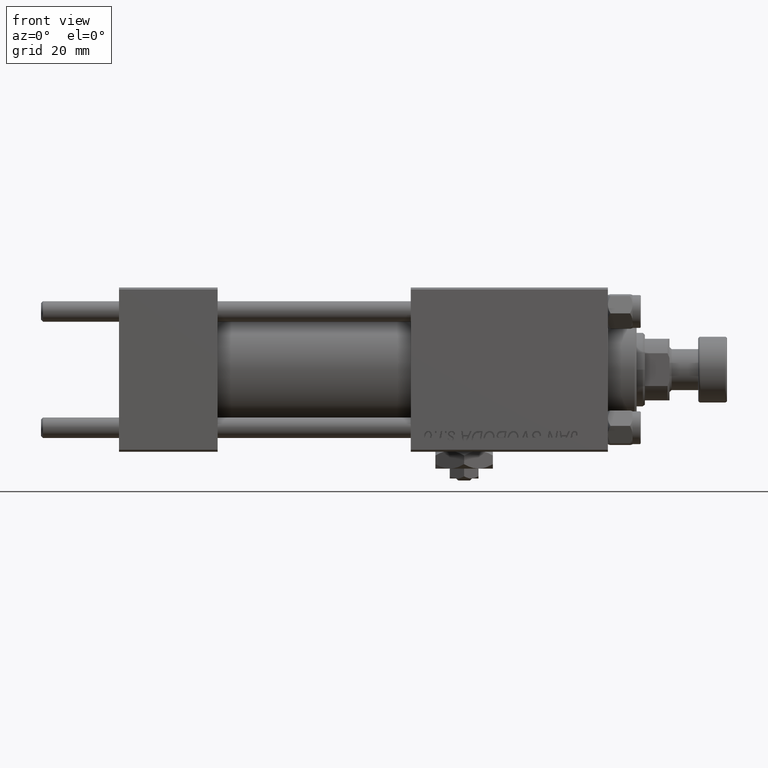
[diagram: clean part render]
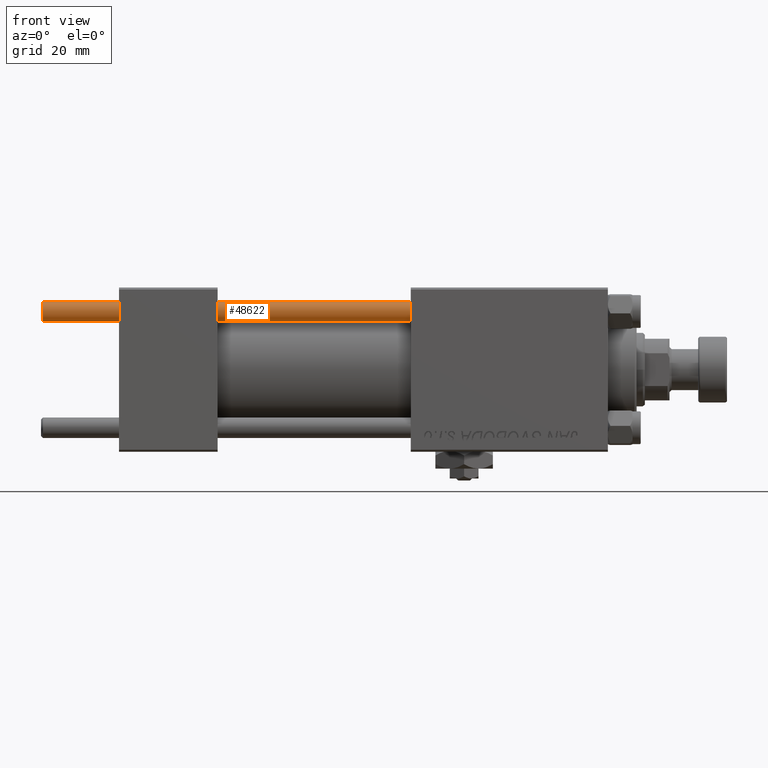
[diagram: same view with one face highlighted and labeled with its STEP entity id]
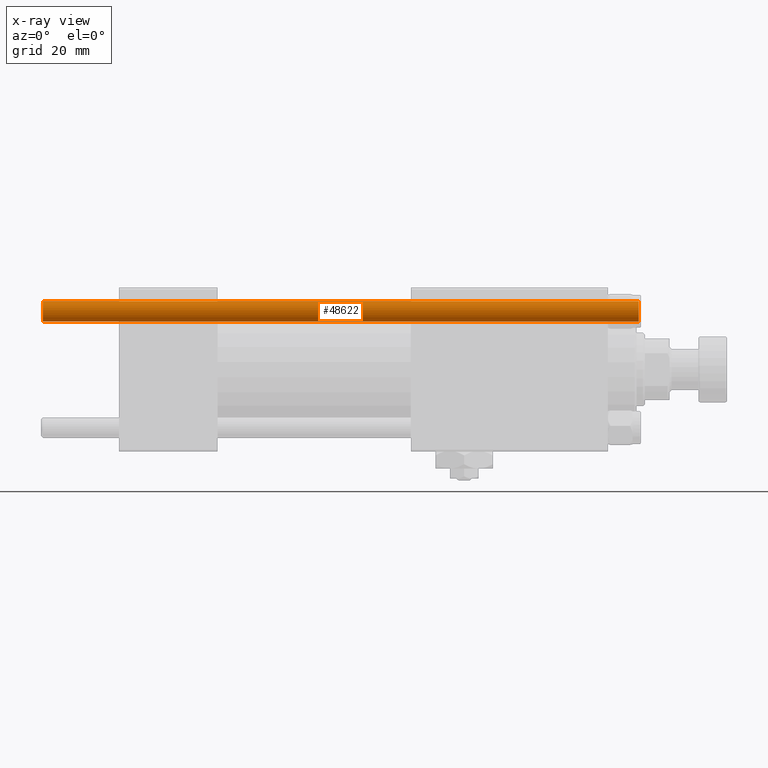
[diagram: x-ray of the same camera — body ghosted, the highlighted face saturated]
A machine part, front view. The second image highlights one B-rep face of the part: STEP entity #48622.
The next image is the same camera in x-ray: the body ghosted, the highlighted face saturated — about 0% of this face is hidden behind the body in this view.
In plain terms, the highlighted cylindrical surface (edge-blend (fillet) strip) has radius 2.5 mm, axis along (1, -0, 0).
Its self-contained STEP definition (entity closure, byte-faithful):
#196 = VECTOR ( 'NONE', #8652, 1000.000000000000000 ) ;
#265 = CYLINDRICAL_SURFACE ( 'NONE', #5485, 2.500000000000000000 ) ;
#375 = AXIS2_PLACEMENT_3D ( 'NONE', #30600, #2238, #50365 ) ;
#2238 = DIRECTION ( 'NONE',  ( 0.000000000000000000, 0.000000000000000000, -1.000000000000000000 ) ) ;
#2258 = VERTEX_POINT ( 'NONE', #36150 ) ;
#2588 = CARTESIAN_POINT ( 'NONE',  ( -2.500000000000000000, 0.000000000000000000, 145.5000000000000284 ) ) ;
#5485 = AXIS2_PLACEMENT_3D ( 'NONE', #8409, #36272, #47881 ) ;
#8371 = EDGE_CURVE ( 'NONE', #16095, #2258, #51496, .T. ) ;
#8409 = CARTESIAN_POINT ( 'NONE',  ( 0.000000000000000000, 0.000000000000000000, 146.0000000000000000 ) ) ;
#8652 = DIRECTION ( 'NONE',  ( -0.000000000000000000, -0.000000000000000000, -1.000000000000000000 ) ) ;
#8777 = ORIENTED_EDGE ( 'NONE', *, *, #16245, .T. ) ;
#10783 = ORIENTED_EDGE ( 'NONE', *, *, #19856, .T. ) ;
#14664 = DIRECTION ( 'NONE',  ( -0.000000000000000000, -0.000000000000000000, -1.000000000000000000 ) ) ;
#16095 = VERTEX_POINT ( 'NONE', #2588 ) ;
#16245 = EDGE_CURVE ( 'NONE', #17563, #2258, #46915, .T. ) ;
#17563 = VERTEX_POINT ( 'NONE', #35055 ) ;
#19135 = CARTESIAN_POINT ( 'NONE',  ( 0.000000000000000000, 0.000000000000000000, 0.5000000000000559552 ) ) ;
#19161 = AXIS2_PLACEMENT_3D ( 'NONE', #19135, #34910, #27797 ) ;
#19856 = EDGE_CURVE ( 'NONE', #51101, #17563, #44164, .T. ) ;
#22195 = CIRCLE ( 'NONE', #375, 2.500000000000000000 ) ;
#24376 = EDGE_CURVE ( 'NONE', #16095, #51101, #22195, .T. ) ;
#25788 = CARTESIAN_POINT ( 'NONE',  ( 2.500000000000000000, 3.061616997868383141E-16, 145.5000000000000284 ) ) ;
#27797 = DIRECTION ( 'NONE',  ( 1.000000000000000000, 0.000000000000000000, 0.000000000000000000 ) ) ;
#30600 = CARTESIAN_POINT ( 'NONE',  ( 0.000000000000000000, 0.000000000000000000, 145.5000000000000284 ) ) ;
#30737 = ORIENTED_EDGE ( 'NONE', *, *, #24376, .T. ) ;
#34910 = DIRECTION ( 'NONE',  ( -0.000000000000000000, -0.000000000000000000, 1.000000000000000000 ) ) ;
#34923 = CARTESIAN_POINT ( 'NONE',  ( -2.500000000000000000, 0.000000000000000000, 146.0000000000000000 ) ) ;
#35055 = CARTESIAN_POINT ( 'NONE',  ( 2.500000000000000000, 3.061616997868383141E-16, 0.5000000000000559552 ) ) ;
#36150 = CARTESIAN_POINT ( 'NONE',  ( -2.500000000000000000, 0.000000000000000000, 0.5000000000000559552 ) ) ;
#36269 = CARTESIAN_POINT ( 'NONE',  ( 2.500000000000000000, 3.061616997868383141E-16, 146.0000000000000000 ) ) ;
#36272 = DIRECTION ( 'NONE',  ( -0.000000000000000000, -0.000000000000000000, -1.000000000000000000 ) ) ;
#36522 = VECTOR ( 'NONE', #14664, 1000.000000000000000 ) ;
#43767 = ORIENTED_EDGE ( 'NONE', *, *, #8371, .F. ) ;
#44164 = LINE ( 'NONE', #36269, #196 ) ;
#46915 = CIRCLE ( 'NONE', #19161, 2.500000000000000000 ) ;
#47881 = DIRECTION ( 'NONE',  ( -1.000000000000000000, 0.000000000000000000, 0.000000000000000000 ) ) ;
#48622 = ADVANCED_FACE ( 'NONE', ( #48673 ), #265, .T. ) ;
#48673 = FACE_OUTER_BOUND ( 'NONE', #48808, .T. ) ;
#48808 = EDGE_LOOP ( 'NONE', ( #30737, #10783, #8777, #43767 ) ) ;
#50365 = DIRECTION ( 'NONE',  ( 1.000000000000000000, 0.000000000000000000, 0.000000000000000000 ) ) ;
#51101 = VERTEX_POINT ( 'NONE', #25788 ) ;
#51496 = LINE ( 'NONE', #34923, #36522 ) ;